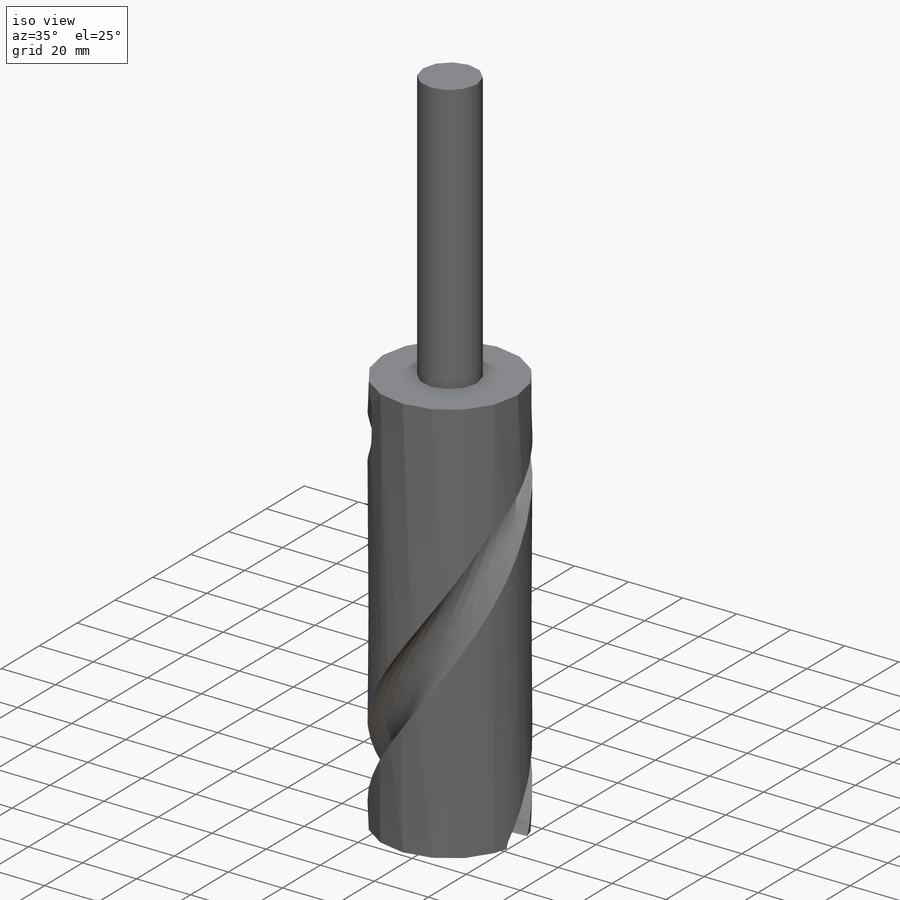
[diagram: iso view]
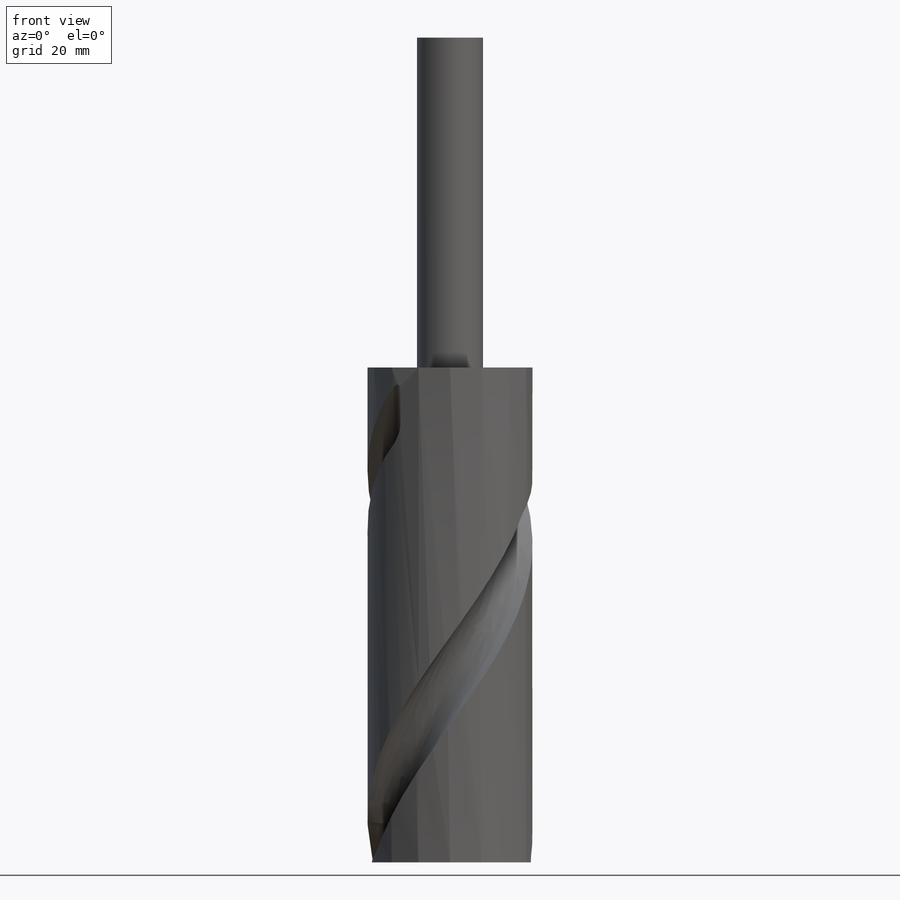
[diagram: front view]
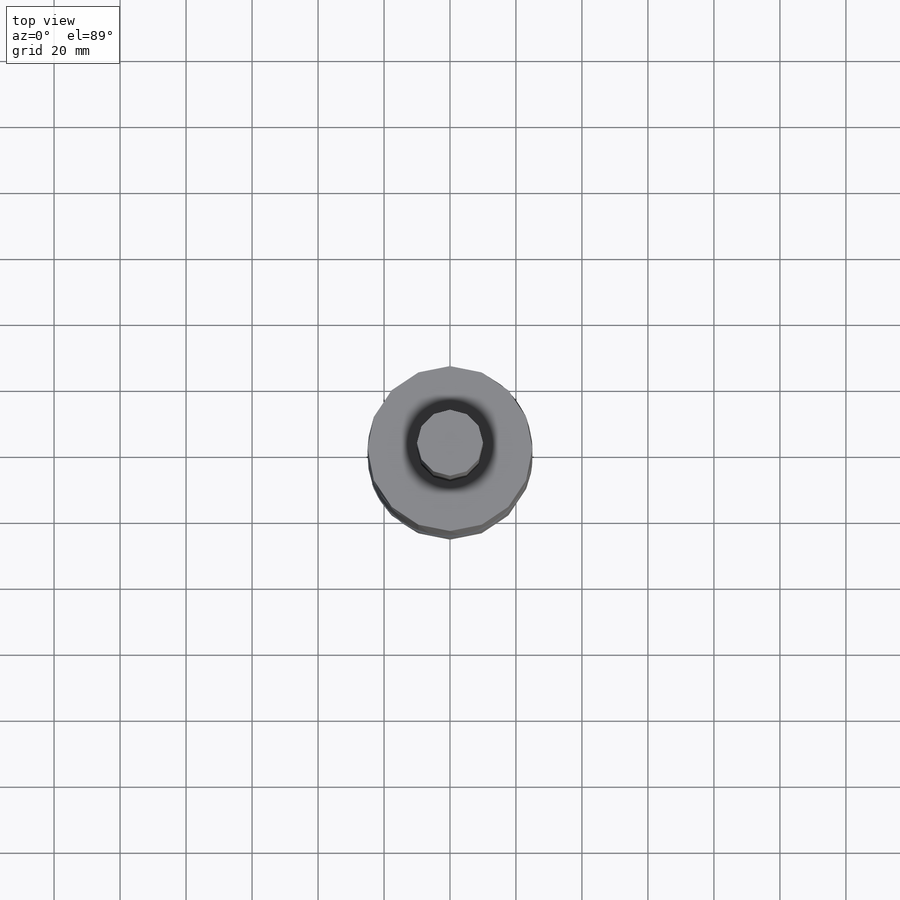
[diagram: top view]
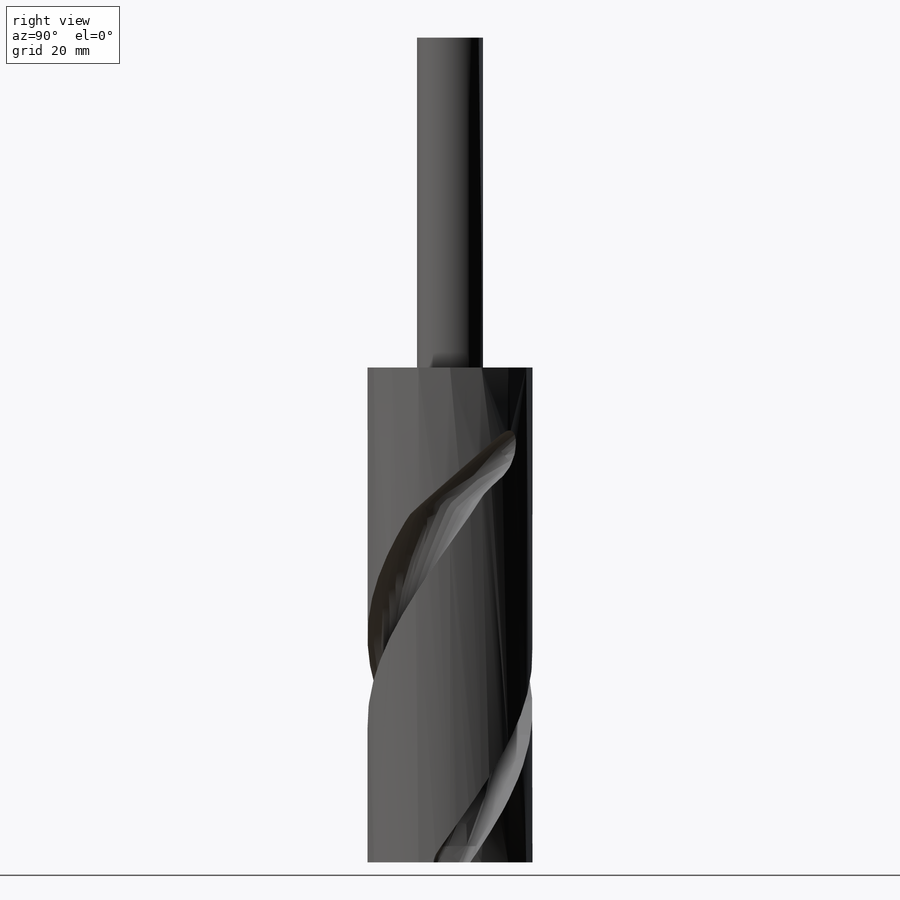
[diagram: right view]
SOLIDWORKS PART (.sldprt)
format: sldprt  version: not decoded by parser v0  size: 1,299,968 bytes
history: native  units: mm
features: sketch x7, plane x4, revolve x3, helix x2, sweep x2, material x1 (+10 scaffold rows collapsed)
feature tree (29):
  scaffold x10  (default folders/planes/origin — collapsed)
  material  "Materiál <není určen>"
  plane  "XY"
  plane  "XZ"
  plane  "ZY"
  sketch  "Sketch1"  dims[D1=150.0mm D2=50.0mm D3=20.0mm D4=100.0mm]
  revolve  "Revolve1"  Angle=360deg
  sketch  "Sketch2"  dims[D1=2.0mm D2=10.0mm D3=15.0mm]
  revolve  "Revolve2"  Angle=360deg
  sketch  "Sketch3"
  helix  "Helix/Spiral1"  Pitch=110mm
  sketch  "3DSketch1"
  sweep  "Cut-Sweep1"
  sketch  "Sketch4"  dims[D1=~40.463937mm]
  helix  "Helix/Spiral2"  Pitch=110mm
  sketch  "3DSketch2"
  plane  "Plane1"
  sketch  "Sketch5"  dims[c1.D1=~9.985145mm c2.D1=1.0deg c3.D1=10.0mm c3.D2=40.0mm]
  revolve  "Revolve3"  Angle=360deg
  sweep  "Cut-Sweep2"
decode coverage: 9 of 14 modeling features carry decoded parameters
note: ~ marks probable driven/reference dimensions
note: suppression state not decoded; provenance and decode notes live in map.json
